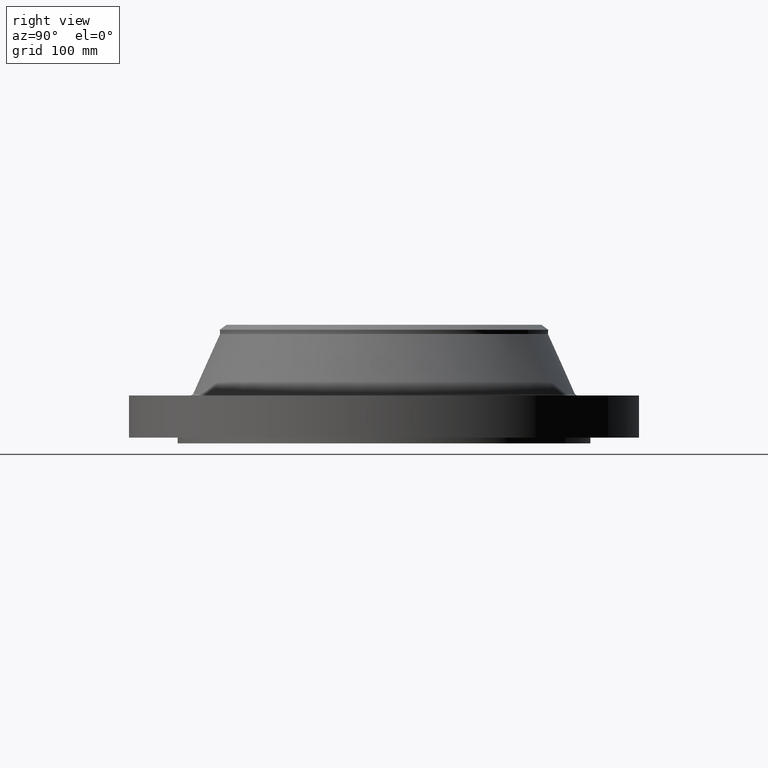
[diagram: clean part render]
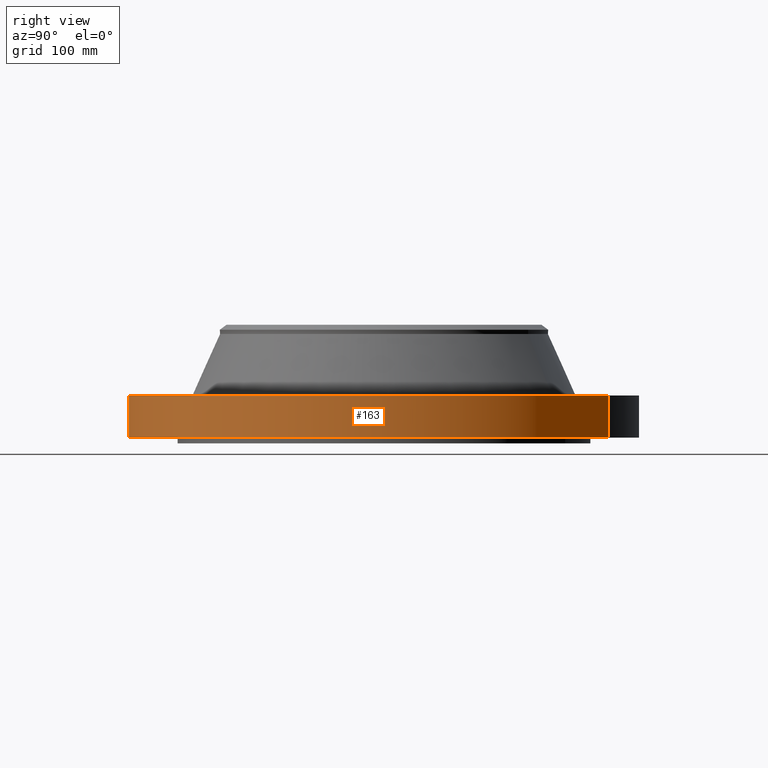
[diagram: same view with one face highlighted and labeled with its STEP entity id]
A machine part, right view. The second image highlights one B-rep face of the part: STEP entity #163.
In plain terms, the highlighted cylindrical surface (partial cylindrical patch) has radius 355.6 mm, axis along (0, 0, -1).
Its self-contained STEP definition (entity closure, byte-faithful):
#110=AXIS2_PLACEMENT_3D('Cylinder Axis2P3D',#107,#108,#109) ;
#149=AXIS2_PLACEMENT_3D('Circle Axis2P3D',#147,#148,$) ;
#154=AXIS2_PLACEMENT_3D('Circle Axis2P3D',#152,#153,$) ;
#107=CARTESIAN_POINT('Axis2P3D Location',(0.,0.,2.93850000001)) ;
#116=CARTESIAN_POINT('Vertex',(-6.71195754049,-12.2861558665,1.67844740731E-015)) ;
#118=CARTESIAN_POINT('Vertex',(6.71195754049,12.2861558665,1.67844740731E-015)) ;
#121=CARTESIAN_POINT('Line Origine',(-6.71195754049,-12.2861558665,1.155)) ;
#125=CARTESIAN_POINT('Vertex',(-6.71195754049,-12.2861558665,2.31000000001)) ;
#132=CARTESIAN_POINT('Vertex',(6.71195754049,12.2861558665,2.31000000001)) ;
#135=CARTESIAN_POINT('Line Origine',(6.71195754049,12.2861558665,1.155)) ;
#147=CARTESIAN_POINT('Axis2P3D Location',(0.,0.,1.67844740731E-015)) ;
#152=CARTESIAN_POINT('Axis2P3D Location',(0.,0.,2.31000000001)) ;
#108=DIRECTION('Axis2P3D Direction',(0.,0.,-0.0393700787402)) ;
#109=DIRECTION('Axis2P3D XDirection',(0.0188750212049,0.0345504945626,0.)) ;
#122=DIRECTION('Vector Direction',(0.,0.,-0.0393700787402)) ;
#136=DIRECTION('Vector Direction',(0.,0.,-0.0393700787402)) ;
#148=DIRECTION('Axis2P3D Direction',(0.,0.,-0.0393700787402)) ;
#153=DIRECTION('Axis2P3D Direction',(0.,0.,-0.0393700787402)) ;
#123=VECTOR('Line Direction',#122,0.0393700787402) ;
#137=VECTOR('Line Direction',#136,0.0393700787402) ;
#158=ORIENTED_EDGE('',*,*,#151,.F.) ;
#159=ORIENTED_EDGE('',*,*,#139,.T.) ;
#160=ORIENTED_EDGE('',*,*,#156,.T.) ;
#161=ORIENTED_EDGE('',*,*,#127,.F.) ;
#163=ADVANCED_FACE('PartBody',(#162),#111,.T.) ;
#150=CIRCLE('generated circle',#149,14.0000000001) ;
#155=CIRCLE('generated circle',#154,14.0000000001) ;
#111=CYLINDRICAL_SURFACE('generated cylinder',#110,14.0000000001) ;
#127=EDGE_CURVE('',#117,#126,#124,.F.) ;
#139=EDGE_CURVE('',#119,#133,#138,.F.) ;
#151=EDGE_CURVE('',#119,#117,#150,.T.) ;
#156=EDGE_CURVE('',#133,#126,#155,.T.) ;
#157=EDGE_LOOP('',(#158,#159,#160,#161)) ;
#162=FACE_OUTER_BOUND('',#157,.T.) ;
#124=LINE('Line',#121,#123) ;
#138=LINE('Line',#135,#137) ;
#117=VERTEX_POINT('',#116) ;
#119=VERTEX_POINT('',#118) ;
#126=VERTEX_POINT('',#125) ;
#133=VERTEX_POINT('',#132) ;